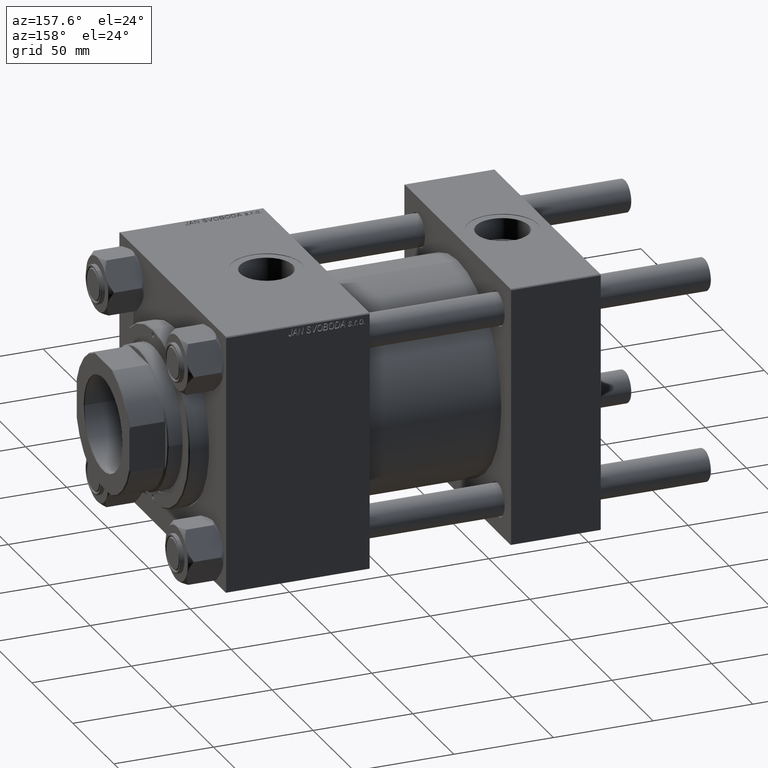
[diagram: clean part render]
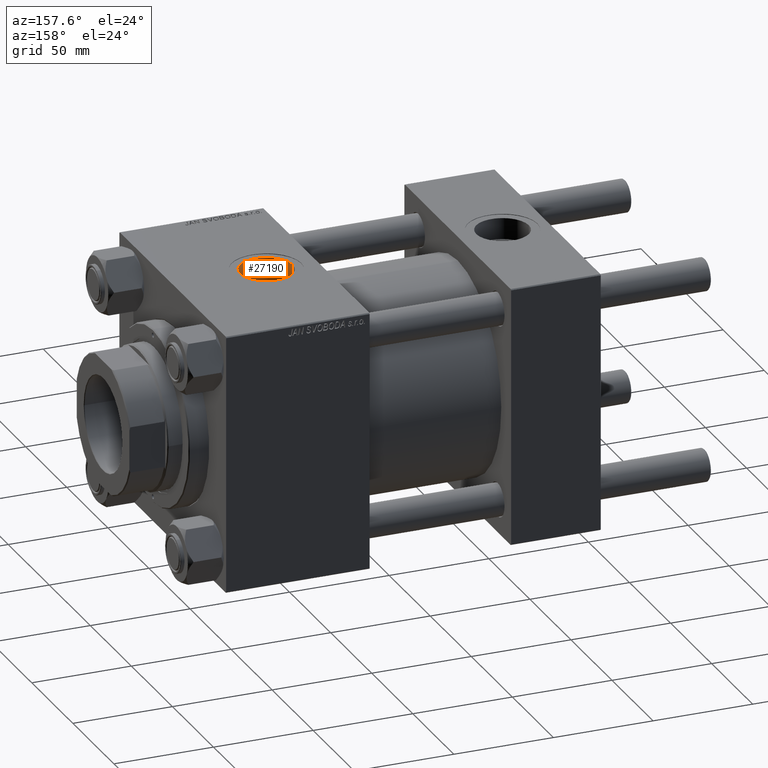
[diagram: same view with one face highlighted and labeled with its STEP entity id]
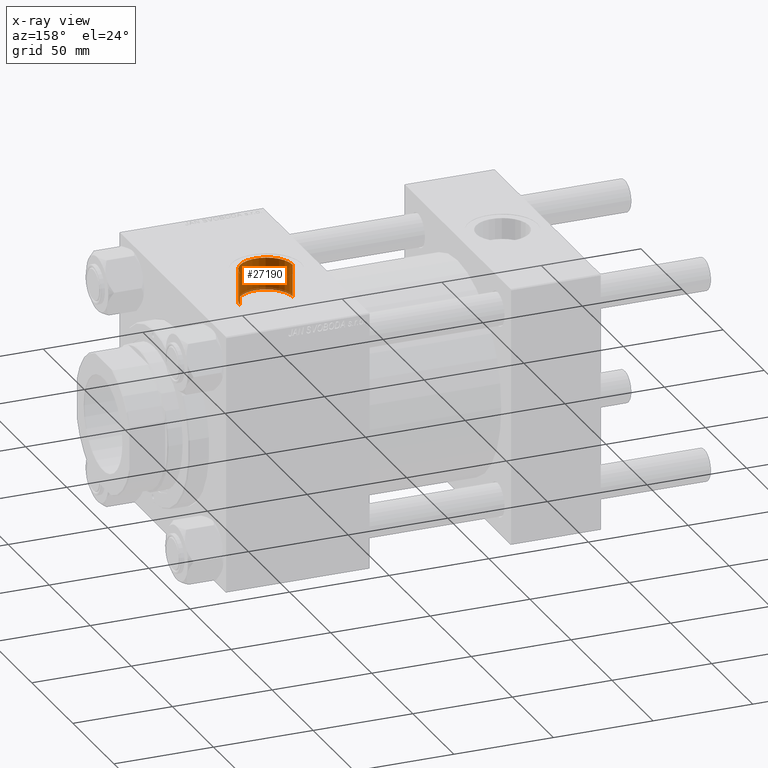
[diagram: x-ray of the same camera — body ghosted, the highlighted face saturated]
A machine part, auxiliary view. The second image highlights one B-rep face of the part: STEP entity #27190.
The next image is the same camera in x-ray: the body ghosted, the highlighted face saturated — about 6% of this face is hidden behind the body in this view.
In plain terms, the highlighted cylindrical surface (edge-blend (fillet) strip) has radius 13.22 mm, axis along (0, 0, -1).
Its self-contained STEP definition (entity closure, byte-faithful):
#1148 = VECTOR ( 'NONE', #11167, 1000.000000000000000 ) ;
#3122 = DIRECTION ( 'NONE',  ( 0.000000000000000000, 0.000000000000000000, -1.000000000000000000 ) ) ;
#4764 = CARTESIAN_POINT ( 'NONE',  ( 127.7799999999999443, -6.938893903907228378E-15, 64.79999999999999716 ) ) ;
#5631 = ORIENTED_EDGE ( 'NONE', *, *, #16641, .T. ) ;
#5829 = CARTESIAN_POINT ( 'NONE',  ( 140.9999999999999716, -6.938893903907228378E-15, 48.59999999999998721 ) ) ;
#7368 = FACE_OUTER_BOUND ( 'NONE', #16693, .T. ) ;
#8502 = EDGE_CURVE ( 'NONE', #40377, #37458, #34341, .T. ) ;
#9568 = CARTESIAN_POINT ( 'NONE',  ( 154.2199999999999704, -5.319910835434425649E-15, 87.79999999999998295 ) ) ;
#10866 = AXIS2_PLACEMENT_3D ( 'NONE', #36703, #48916, #40425 ) ;
#11167 = DIRECTION ( 'NONE',  ( 0.000000000000000000, 0.000000000000000000, -1.000000000000000000 ) ) ;
#16242 = ORIENTED_EDGE ( 'NONE', *, *, #21510, .F. ) ;
#16641 = EDGE_CURVE ( 'NONE', #44248, #37458, #21767, .T. ) ;
#16693 = EDGE_LOOP ( 'NONE', ( #39931, #5631, #36647, #16242 ) ) ;
#17239 = VECTOR ( 'NONE', #49392, 1000.000000000000000 ) ;
#19513 = CARTESIAN_POINT ( 'NONE',  ( 154.2199999999999704, -5.319910835434425649E-15, 48.59999999999998721 ) ) ;
#21510 = EDGE_CURVE ( 'NONE', #26252, #40377, #43283, .T. ) ;
#21767 = LINE ( 'NONE', #9568, #17239 ) ;
#23098 = CARTESIAN_POINT ( 'NONE',  ( 127.7799999999999443, -6.938893903907228378E-15, 87.79999999999998295 ) ) ;
#23146 = CARTESIAN_POINT ( 'NONE',  ( 127.7799999999999443, -6.938893903907228378E-15, 48.59999999999998721 ) ) ;
#26252 = VERTEX_POINT ( 'NONE', #4764 ) ;
#27190 = ADVANCED_FACE ( 'NONE', ( #7368 ), #51955, .F. ) ;
#30717 = CARTESIAN_POINT ( 'NONE',  ( 140.9999999999999716, -6.938893903907228378E-15, 87.79999999999998295 ) ) ;
#32991 = CIRCLE ( 'NONE', #10866, 13.22000000000000952 ) ;
#34341 = CIRCLE ( 'NONE', #46246, 13.22000000000000952 ) ;
#36647 = ORIENTED_EDGE ( 'NONE', *, *, #8502, .F. ) ;
#36703 = CARTESIAN_POINT ( 'NONE',  ( 140.9999999999999716, -6.938893903907228378E-15, 64.79999999999999716 ) ) ;
#37458 = VERTEX_POINT ( 'NONE', #19513 ) ;
#38715 = DIRECTION ( 'NONE',  ( 1.000000000000000000, 0.000000000000000000, 0.000000000000000000 ) ) ;
#38962 = DIRECTION ( 'NONE',  ( -1.000000000000000000, 0.000000000000000000, 0.000000000000000000 ) ) ;
#39490 = AXIS2_PLACEMENT_3D ( 'NONE', #30717, #3122, #38962 ) ;
#39931 = ORIENTED_EDGE ( 'NONE', *, *, #50075, .F. ) ;
#40377 = VERTEX_POINT ( 'NONE', #23146 ) ;
#40425 = DIRECTION ( 'NONE',  ( 1.000000000000000000, 0.000000000000000000, 0.000000000000000000 ) ) ;
#42123 = CARTESIAN_POINT ( 'NONE',  ( 154.2199999999999704, -5.319910835434425649E-15, 64.79999999999999716 ) ) ;
#43283 = LINE ( 'NONE', #23098, #1148 ) ;
#44248 = VERTEX_POINT ( 'NONE', #42123 ) ;
#46246 = AXIS2_PLACEMENT_3D ( 'NONE', #5829, #50398, #38715 ) ;
#48916 = DIRECTION ( 'NONE',  ( -0.000000000000000000, -0.000000000000000000, -1.000000000000000000 ) ) ;
#49392 = DIRECTION ( 'NONE',  ( 0.000000000000000000, 0.000000000000000000, -1.000000000000000000 ) ) ;
#50075 = EDGE_CURVE ( 'NONE', #44248, #26252, #32991, .T. ) ;
#50398 = DIRECTION ( 'NONE',  ( 0.000000000000000000, 0.000000000000000000, 1.000000000000000000 ) ) ;
#51955 = CYLINDRICAL_SURFACE ( 'NONE', #39490, 13.22000000000000952 ) ;